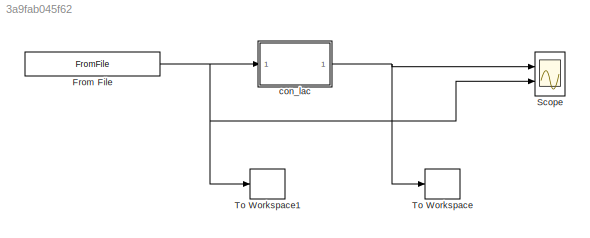
MODEL slx_3a9fab045f62
KIND model
CONFIG AbsTol = auto
CONFIG EnableMultiTasking = off
CONFIG FixedStep = Ts
CONFIG MaxStep = auto
CONFIG MinStep = auto
CONFIG RelTol = 1e-3
CONFIG SampleTimeConstraint = Unconstrained
CONFIG Solver = ode5
CONFIG SolverName = ode5
CONFIG StartTime = 0.0
CONFIG StopTime = 200
BLOCK [FromFile] From File
  FileName = SingleTank_Input.mat
BLOCK [Scope] Scope
  Floating = off
  NumInputPorts = 2
  Ports = [2]
  ScopeSpecificationString = Simulink.scopes.TimeScopeBlockCfg('CurrentConfiguration', extmgr.ConfigurationSet(extmgr.Configuration('Core','General UI',true,'FigureColor',[1 1 1]),extmgr.Configuration('Core','Source UI',true),extmgr.Configuration('Sources','WiredSimulink',true),extmgr.Configuration('Visuals','Time Domain',true,'SerializedDisplays',{struct('MinYLimReal','-1.5228','MaxYLimReal','1.62038','YLabelReal','','MinYLi...<+2335ch>
BLOCK [ToWorkspace] To Workspace
  FixptAsFi = on
  MaxDataPoints = inf
  Ports = [1]
  SampleTime = -1
  Save2DSignal = 3-D array (concatenate along third dimension)
  VariableName = y
BLOCK [ToWorkspace] To Workspace1
  FixptAsFi = on
  MaxDataPoints = inf
  Ports = [1]
  SampleTime = -1
  Save2DSignal = 3-D array (concatenate along third dimension)
  VariableName = u
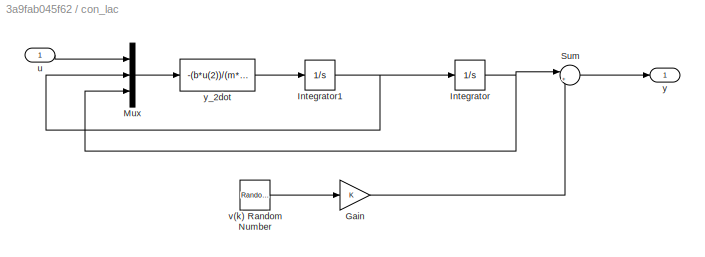
BLOCK [SubSystem] con_lac
  Ports = [1, 1]
  RequestExecContextInheritance = off
BLOCK [Gain] con_lac/Gain
  OutDataTypeStr = Inherit: Inherit via internal rule
  ParamDataTypeStr = Inherit: Inherit via internal rule
  SaturateOnIntegerOverflow = off
BLOCK [Integrator] con_lac/Integrator
  LowerSaturationLimit = -pi/3
  Ports = [1, 1]
  UpperSaturationLimit = pi/3
BLOCK [Integrator] con_lac/Integrator1
  Ports = [1, 1]
BLOCK [Mux] con_lac/Mux
  DisplayOption = bar
  Inputs = 3
  Ports = [3, 1]
BLOCK [Sum] con_lac/Sum
  IconShape = round
  InputSameDT = off
  Inputs = |++
  OutDataTypeStr = Inherit: Inherit via internal rule
  Ports = [2, 1]
  SaturateOnIntegerOverflow = off
BLOCK [Inport] con_lac/u
  IconDisplay = Port number
BLOCK [RandomNumber] con_lac/v(k) Random Number
  Variance = 0.001
BLOCK [Outport] con_lac/y
  IconDisplay = Port number
BLOCK [Fcn] con_lac/y_2dot
  Expr = -(b*u(2))/(m*l^2)-(g*sin(u(3)))/l+u(1)/(m*l^2)
NET From File:1 -> Scope:2, To Workspace1:1, con_lac:1
LINE con_lac/Gain:1 -> con_lac/Sum:2
NET con_lac/Integrator1:1 -> con_lac/Integrator:1, con_lac/Mux:2
NET con_lac/Integrator:1 -> con_lac/Mux:3, con_lac/Sum:1
LINE con_lac/Mux:1 -> con_lac/y_2dot:1
LINE con_lac/Sum:1 -> con_lac/y:1
LINE con_lac/u:1 -> con_lac/Mux:1
LINE con_lac/v(k) Random Number:1 -> con_lac/Gain:1
LINE con_lac/y_2dot:1 -> con_lac/Integrator1:1
NET con_lac:1 -> Scope:1, To Workspace:1
note: NET lines group one-source signal fan-out (src -> all destinations, sorted); 1:1 wires keep LINE
